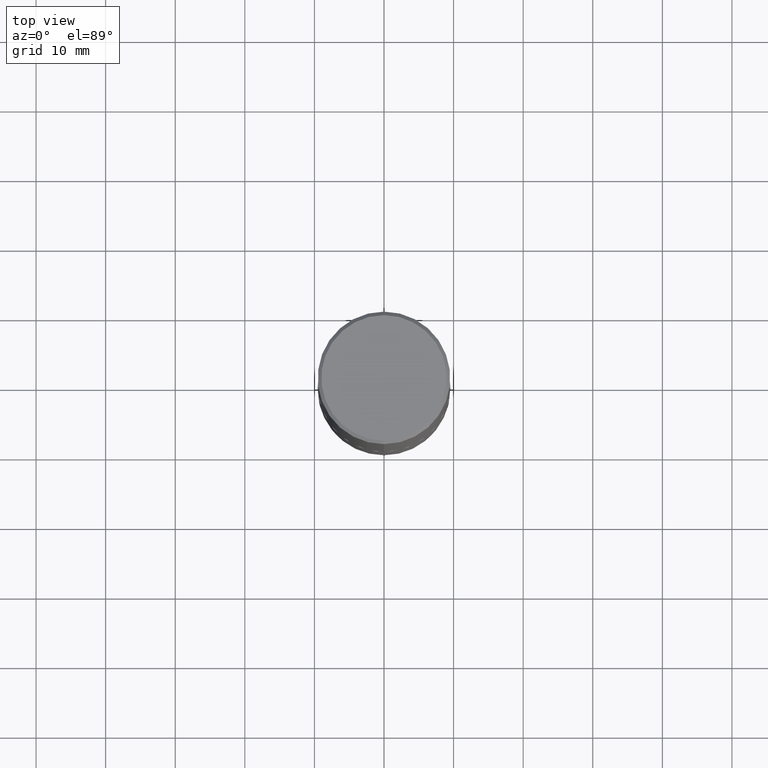
[diagram: clean part render]
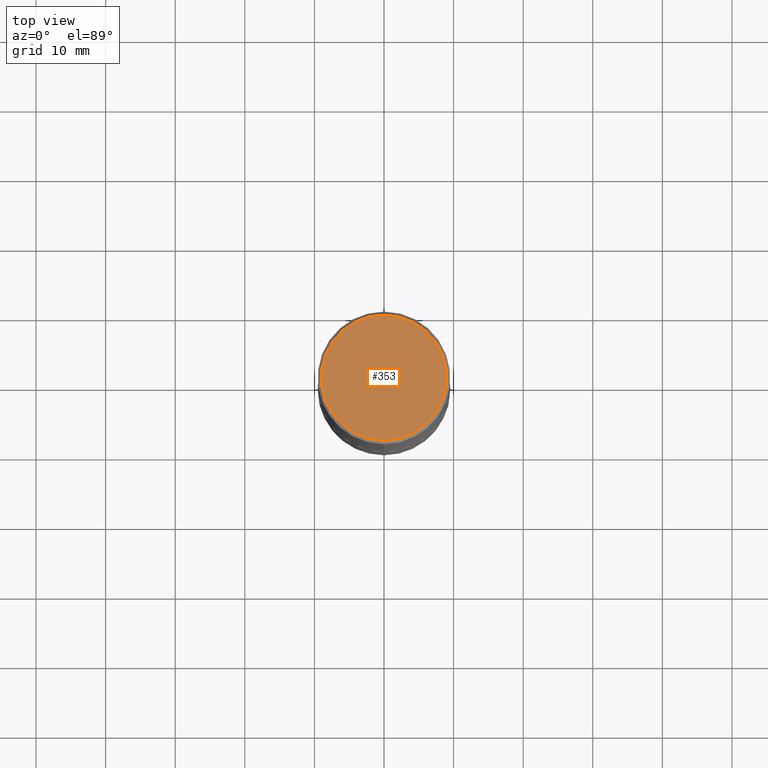
[diagram: same view with one face highlighted and labeled with its STEP entity id]
A machine part, top view. The second image highlights one B-rep face of the part: STEP entity #353.
In plain terms, the highlighted planar face has unit normal (0, -0, -1).
Its self-contained STEP definition (entity closure, byte-faithful):
#16 = EDGE_CURVE ( 'NONE', #88, #28, #69, .T. ) ;
#21 = FACE_OUTER_BOUND ( 'NONE', #166, .T. ) ;
#25 = CARTESIAN_POINT ( 'NONE',  ( 2.478951750578623420E-15, 0.3549999999999998157, -1.156211816997397957E-15 ) ) ;
#28 = VERTEX_POINT ( 'NONE', #345 ) ;
#55 = AXIS2_PLACEMENT_3D ( 'NONE', #379, #277, #241 ) ;
#62 = CARTESIAN_POINT ( 'NONE',  ( 2.548781377355487113E-15, 0.3549999999999998157, -1.073003888175400197E-15 ) ) ;
#66 = CIRCLE ( 'NONE', #288, 0.3549999999999998157 ) ;
#69 = CIRCLE ( 'NONE', #55, 0.3549999999999998157 ) ;
#88 = VERTEX_POINT ( 'NONE', #62 ) ;
#98 = ORIENTED_EDGE ( 'NONE', *, *, #290, .T. ) ;
#110 = DIRECTION ( 'NONE',  ( 6.982962677686265922E-15, 1.000000000000000000, -3.491323227660273177E-15 ) ) ;
#142 = ORIENTED_EDGE ( 'NONE', *, *, #16, .T. ) ;
#143 = DIRECTION ( 'NONE',  ( 2.445579214634028631E-29, -3.491323227660273177E-15, -1.000000000000000000 ) ) ;
#166 = EDGE_LOOP ( 'NONE', ( #142, #98 ) ) ;
#241 = DIRECTION ( 'NONE',  ( -6.982962677686266711E-15, -1.000000000000000000, 3.491323227660273177E-15 ) ) ;
#253 = DIRECTION ( 'NONE',  ( -2.445579214634029192E-29, 3.491323227660272783E-15, 1.000000000000000000 ) ) ;
#277 = DIRECTION ( 'NONE',  ( -2.445579214634029192E-29, 3.491323227660272783E-15, 1.000000000000000000 ) ) ;
#288 = AXIS2_PLACEMENT_3D ( 'NONE', #292, #253, #385 ) ;
#290 = EDGE_CURVE ( 'NONE', #28, #88, #66, .T. ) ;
#292 = CARTESIAN_POINT ( 'NONE',  ( -4.069831624396524765E-45, 5.810115492434890943E-31, 1.664158576439961372E-16 ) ) ;
#308 = PLANE ( 'NONE',  #319 ) ;
#319 = AXIS2_PLACEMENT_3D ( 'NONE', #25, #143, #110 ) ;
#345 = CARTESIAN_POINT ( 'NONE',  ( -2.504081769186608216E-15, -0.3549999999999998157, 1.405835603463392225E-15 ) ) ;
#353 = ADVANCED_FACE ( 'NONE', ( #21 ), #308, .F. ) ;
#379 = CARTESIAN_POINT ( 'NONE',  ( -4.069831624396524765E-45, 5.810115492434890943E-31, 1.664158576439961372E-16 ) ) ;
#385 = DIRECTION ( 'NONE',  ( -6.982962677686266711E-15, -1.000000000000000000, 3.491323227660273177E-15 ) ) ;